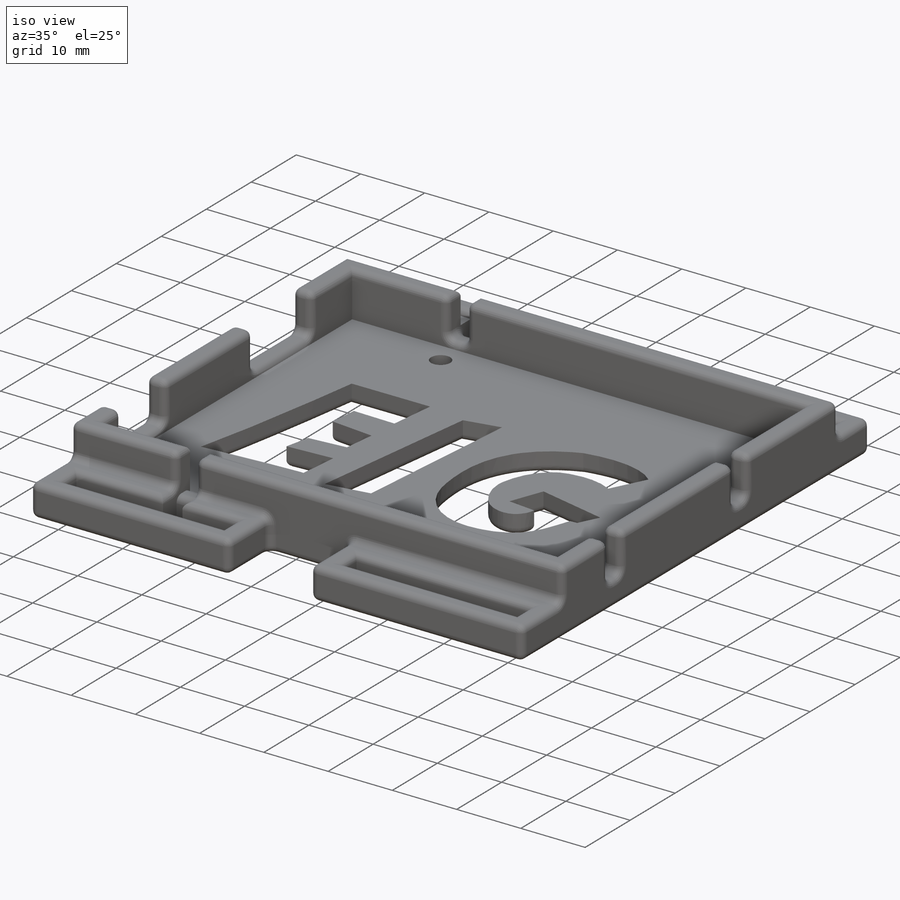
[diagram: iso view]
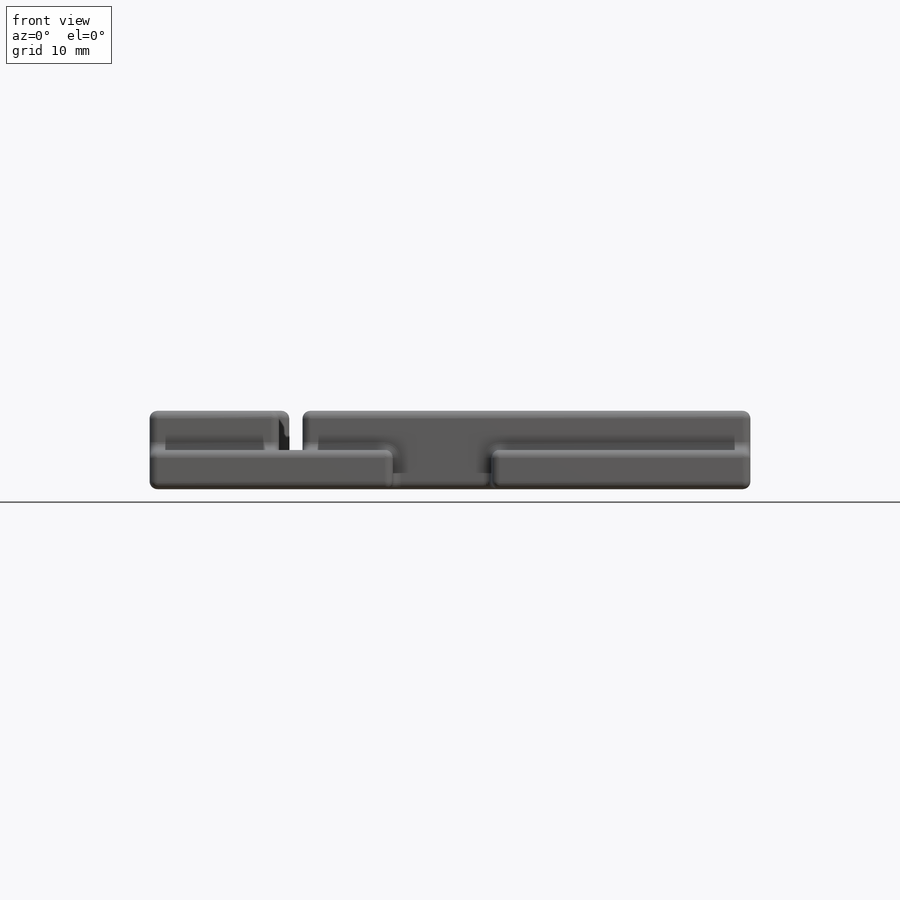
[diagram: front view]
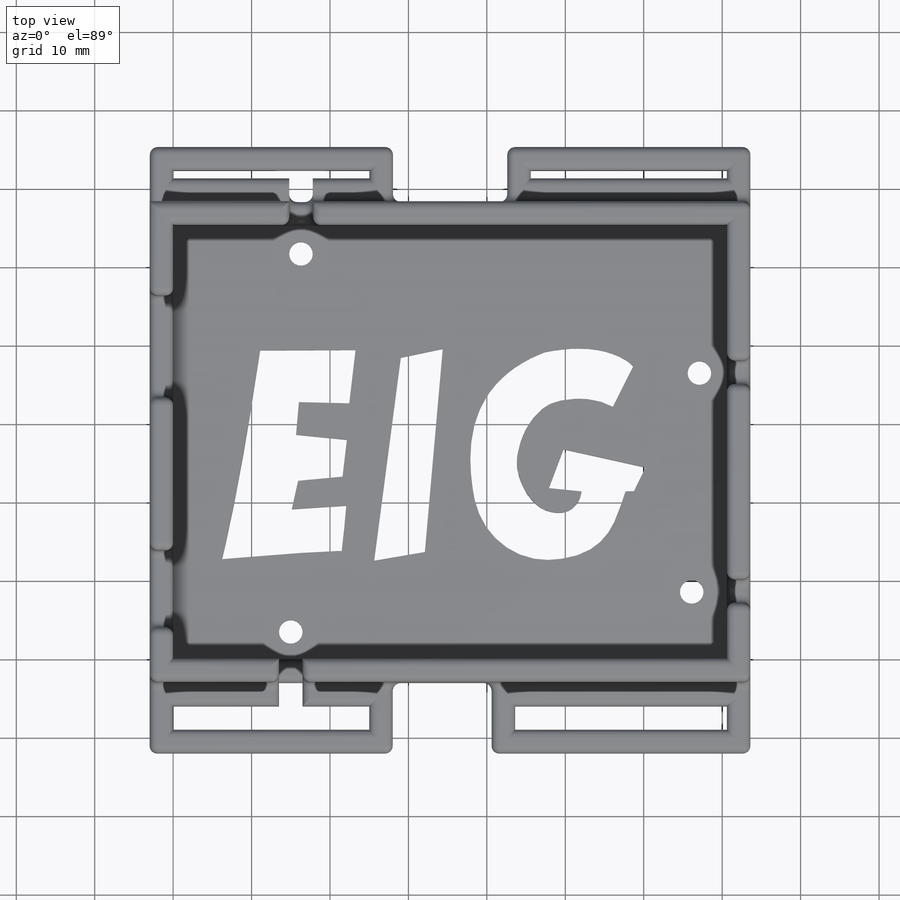
[diagram: top view]
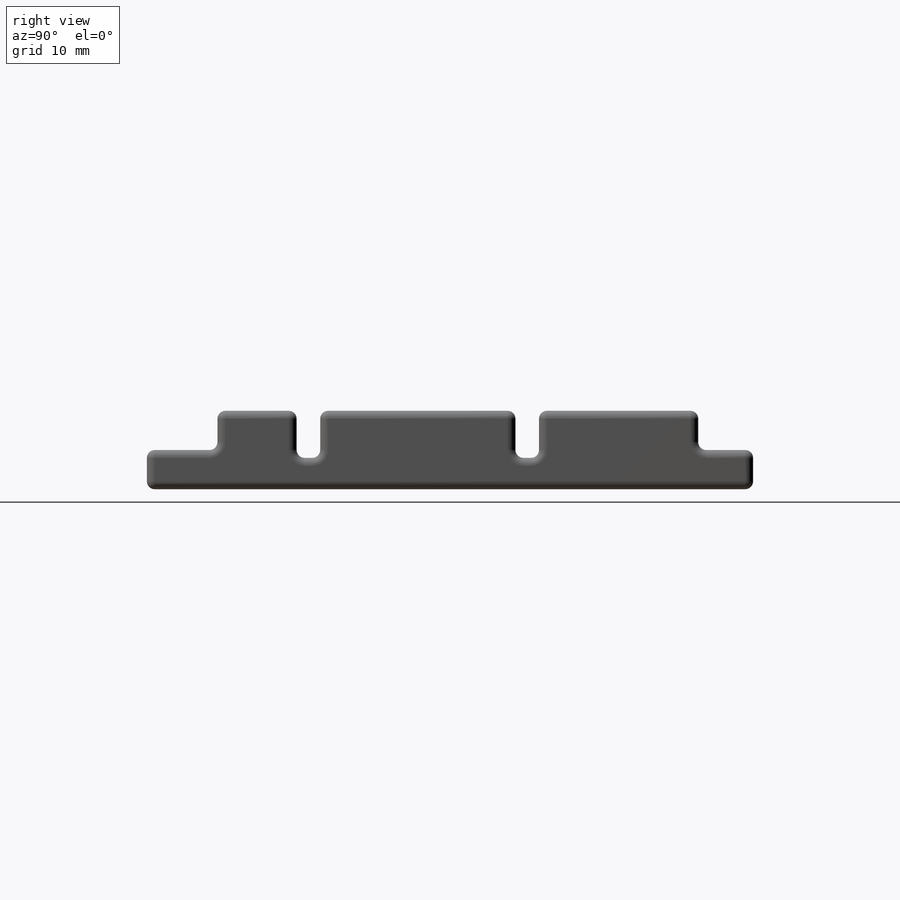
[diagram: right view]
SOLIDWORKS PART (.sldprt)
format: sldprt  version: not decoded by parser v0  size: 1,072,640 bytes
history: native  units: mm
features: sketch x7, cut_extrude x5, extrude x2, material x1, fillet x1 (+13 scaffold rows collapsed)
feature tree (29):
  scaffold x13  (default folders/planes/origin — collapsed)
  material  "Material <not specified>"
  sketch  "Sketch3"  dims[c1.D1=3.0mm c1.D2=3.0mm c1.D3=3.0mm c1.D4=3.0mm c1.D5=~4.242641mm c2.D1=3.0mm c2.D5=~4.242641mm c2.D4=3.0mm c3.D5=~4.242641mm c3.D1=3.0mm c3.D2=3.0mm c3.D3=3.0mm c3.D4=3.0mm c4.D1=61.3mm]
  extrude  "Boss-Extrude2"  Depth=10mm
  sketch  "Sketch4"  dims[D1=70.6mm]
  cut_extrude  "Cut-Extrude1"  Depth=7mm
  sketch  "Sketch2"  dims[c1.D1=1.25mm c1.D2=3.0mm c2.D1=3.0mm c2.D2=3.0mm c2.D3=3.0mm c2.D4=3.0mm c2.D5=3.0mm c2.D6=3.0mm c2.D7=3.0mm c3.D1=2.5mm c3.D2=14.0mm c4.D1=14.0mm c4.D2=2.5mm c5.D1=3.5mm c5.D2=15.0mm c5.D3=27.9mm c5.D4=1.3mm c5.D5=50.8mm c5.D6=15.2mm c5.D7=5.1mm]
  cut_extrude  "Cut-Extrude2"  Depth=3mm
  sketch  "Sketch6"  dims[c1.D1=9.0mm c1.D2=~11.71583mm c1.D3=3.0mm c2.D2=19.5mm c2.D3=13.0mm c2.D4=4.0mm c2.D5=1.5mm c2.D6=3.0mm c2.D7=3.0mm c2.D8=1.5mm c2.D9=3.0mm c2.D10=1.5mm c2.D11=3.0mm c2.D12=1.5mm]
  cut_extrude  "Cut-Extrude3"  Depth=6mm
  sketch  "Sketch7"  dims[D1=3.0mm D2=3.0mm D3=3.0mm D4=3.0mm D5=3.0mm D6=31.0mm D7=3.0mm D8=3.0mm D9=3.0mm D10=3.0mm D11=3.0mm D12=3.0mm D13=3.0mm D14=3.0mm D15=3.0mm D16=3.0mm D17=3.0mm D18=31.0mm]
  extrude  "Boss-Extrude3"  Depth=5mm
  sketch  "Sketch8"  dims[D1=3.0mm]
  cut_extrude  "Cut-Extrude4"  Depth=5mm
  sketch  "Sketch9"
  cut_extrude  "Cut-Extrude5"  Depth=3mm
  fillet  "Fillet1"  Radius=1mm
decode coverage: 14 of 15 modeling features carry decoded parameters
note: ~ marks probable driven/reference dimensions
note: suppression state not decoded; provenance and decode notes live in map.json
